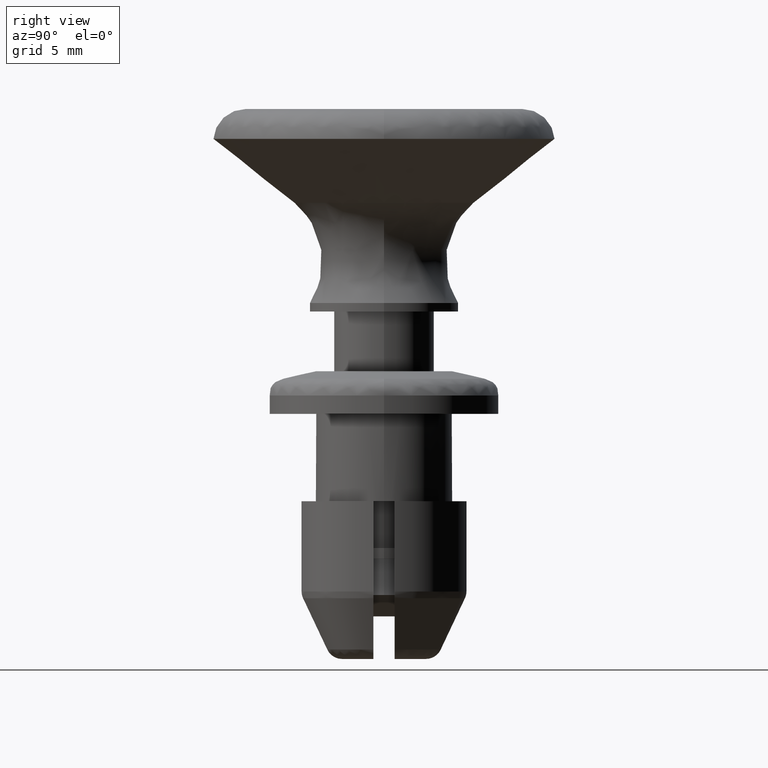
[diagram: clean part render]
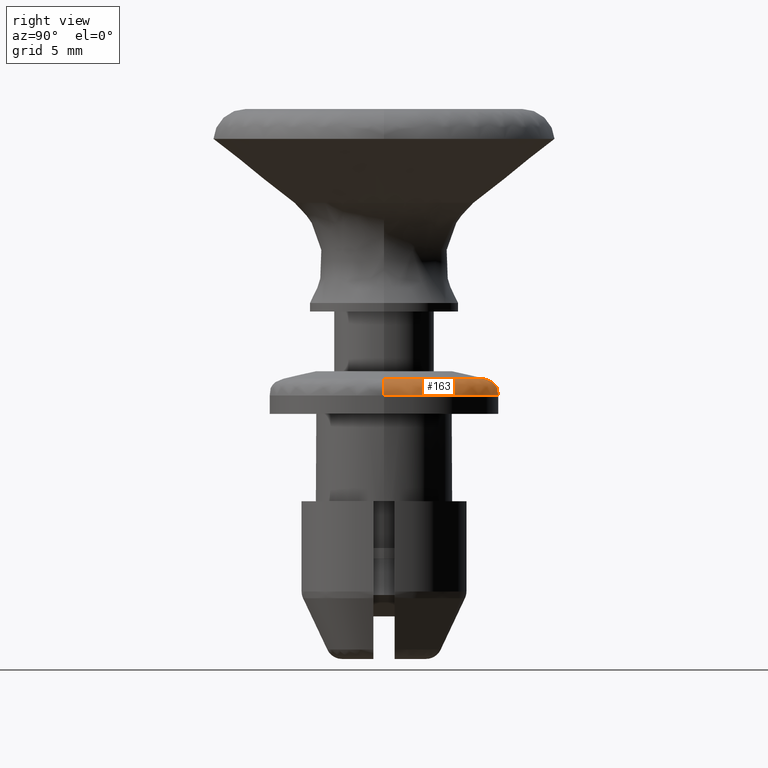
[diagram: same view with one face highlighted and labeled with its STEP entity id]
A machine part, right view. The second image highlights one B-rep face of the part: STEP entity #163.
In plain terms, the highlighted face is a freeform B-spline surface patch.
Its self-contained STEP definition (entity closure, byte-faithful):
#163=ADVANCED_FACE('',(#708),#707,.T.);
#707=( BOUNDED_SURFACE() B_SPLINE_SURFACE( 2,2,((#1401,#1402,#1403,#1404,#1405),(#1406,#1407,#1408,#1409,#1410),(#1411,#1412,#1413,#1414,#1415),(#1416,#1417,#1418,#1419,#1420),(#1421,#1422,#1423,#1424,#1425)), .UNSPECIFIED.,.F.,.F.,.F.) B_SPLINE_SURFACE_WITH_KNOTS((3,2,3),(3,2,3),(0.00000000000E+00,5.00000000000E-01,1.00000000000E+00),(0.00000000000E+00,5.00000000000E-01,1.00000000000E+00), .UNSPECIFIED. ) GEOMETRIC_REPRESENTATION_ITEM() RATIONAL_B_SPLINE_SURFACE(((1.00000000000E+00,7.07106781187E-01,1.00000000000E+00,7.07106781187E-01,1.00000000000E+00),(7.07106781187E-01,5.00000000000E-01,7.07106781187E-01,5.00000000000E-01,7.07106781187E-01),(1.00000000000E+00,7.07106781187E-01,1.00000000000E+00,7.07106781187E-01,1.00000000000E+00),(7.07106781187E-01,5.00000000000E-01,7.07106781187E-01,5.00000000000E-01,7.07106781187E-01),(1.00000000000E+00,7.07106781187E-01,1.00000000000E+00,7.07106781187E-01,1.00000000000E+00))) REPRESENTATION_ITEM('') SURFACE() );
#708=FACE_OUTER_BOUND('',#1426,.T.);
#1401=CARTESIAN_POINT('',(-3.80000000000E+00,-1.53692234909E-20,-1.13900000000E+00));
#1402=CARTESIAN_POINT('',(-3.80000000000E+00,-1.53692234909E-20,-3.39000000000E-01));
#1403=CARTESIAN_POINT('',(-4.60000000000E+00,-1.86048494889E-20,-3.39000000000E-01));
#1404=CARTESIAN_POINT('',(-5.40000000000E+00,-2.18404754870E-20,-3.39000000000E-01));
#1405=CARTESIAN_POINT('',(-5.40000000000E+00,-2.18404754870E-20,-1.13900000000E+00));
#1406=CARTESIAN_POINT('',(-3.80000000000E+00,3.80000000000E+00,-1.13900000000E+00));
#1407=CARTESIAN_POINT('',(-3.80000000000E+00,3.80000000000E+00,-3.39000000000E-01));
#1408=CARTESIAN_POINT('',(-4.60000000000E+00,4.60000000000E+00,-3.39000000000E-01));
#1409=CARTESIAN_POINT('',(-5.40000000000E+00,5.40000000000E+00,-3.39000000000E-01));
#1410=CARTESIAN_POINT('',(-5.40000000000E+00,5.40000000000E+00,-1.13900000000E+00));
#1411=CARTESIAN_POINT('',(-2.32698261061E-16,3.80000000000E+00,-1.13900000000E+00));
#1412=CARTESIAN_POINT('',(-2.32698261061E-16,3.80000000000E+00,-3.39000000000E-01));
#1413=CARTESIAN_POINT('',(-2.81687368653E-16,4.60000000000E+00,-3.39000000000E-01));
#1414=CARTESIAN_POINT('',(-3.30676476245E-16,5.40000000000E+00,-3.39000000000E-01));
#1415=CARTESIAN_POINT('',(-3.30676476245E-16,5.40000000000E+00,-1.13900000000E+00));
#1416=CARTESIAN_POINT('',(3.80000000000E+00,3.80000000000E+00,-1.13900000000E+00));
#1417=CARTESIAN_POINT('',(3.80000000000E+00,3.80000000000E+00,-3.39000000000E-01));
#1418=CARTESIAN_POINT('',(4.60000000000E+00,4.60000000000E+00,-3.39000000000E-01));
#1419=CARTESIAN_POINT('',(5.40000000000E+00,5.40000000000E+00,-3.39000000000E-01));
#1420=CARTESIAN_POINT('',(5.40000000000E+00,5.40000000000E+00,-1.13900000000E+00));
#1421=CARTESIAN_POINT('',(3.80000000000E+00,4.65381152899E-16,-1.13900000000E+00));
#1422=CARTESIAN_POINT('',(3.80000000000E+00,4.65381152899E-16,-3.39000000000E-01));
#1423=CARTESIAN_POINT('',(4.60000000000E+00,5.63356132457E-16,-3.39000000000E-01));
#1424=CARTESIAN_POINT('',(5.40000000000E+00,6.61331112015E-16,-3.39000000000E-01));
#1425=CARTESIAN_POINT('',(5.40000000000E+00,6.61331112015E-16,-1.13900000000E+00));
#1426=EDGE_LOOP('',(#1962,#1963,#1964,#1965));
#1962=ORIENTED_EDGE('',*,*,#2243,.T.);
#1963=ORIENTED_EDGE('',*,*,#2245,.T.);
#1964=ORIENTED_EDGE('',*,*,#2247,.F.);
#1965=ORIENTED_EDGE('',*,*,#2246,.F.);
#2243=EDGE_CURVE('',#3225,#3224,#3244,.T.);
#2245=EDGE_CURVE('',#3224,#3250,#3258,.T.);
#2246=EDGE_CURVE('',#3225,#3251,#3264,.T.);
#2247=EDGE_CURVE('',#3251,#3250,#3270,.T.);
#3224=VERTEX_POINT('',#4269);
#3225=VERTEX_POINT('',#4270);
#3244=CIRCLE('',#4282,4.76500400604E+00);
#3250=VERTEX_POINT('',#4283);
#3251=VERTEX_POINT('',#4284);
#3258=(BOUNDED_CURVE() B_SPLINE_CURVE(2,(#4289,#4290,#4291),.UNSPECIFIED.,.F.,.F.) B_SPLINE_CURVE_WITH_KNOTS((3,3),(5.70663352808E-01,1.00000000000E+00),.UNSPECIFIED.) CURVE() GEOMETRIC_REPRESENTATION_ITEM() RATIONAL_B_SPLINE_CURVE((9.28912784348E-01,7.48500414898E-01,1.00000000000E+00)) REPRESENTATION_ITEM('') );
#3264=(BOUNDED_CURVE() B_SPLINE_CURVE(2,(#4292,#4293,#4294),.UNSPECIFIED.,.F.,.F.) B_SPLINE_CURVE_WITH_KNOTS((3,3),(5.70663335655E-01,1.00000000000E+00),.UNSPECIFIED.) CURVE() GEOMETRIC_REPRESENTATION_ITEM() RATIONAL_B_SPLINE_CURVE((6.96684599073E-01,5.61375303638E-01,7.50000000000E-01)) REPRESENTATION_ITEM('') );
#3270=CIRCLE('',#4298,5.40000000000E+00);
#4269=CARTESIAN_POINT('',(4.76500400604E+00,0.00000000000E+00,-3.56201380946E-01));
#4270=CARTESIAN_POINT('',(-4.76500400604E+00,0.00000000000E+00,-3.56201380946E-01));
#4279=CARTESIAN_POINT('',(0.00000000000E+00,0.00000000000E+00,-3.56201380946E-01));
#4280=DIRECTION('',(-0.00000000000E+00,0.00000000000E+00,-1.00000000000E+00));
#4281=DIRECTION('',(-1.00000000000E+00,-1.22460635382E-16,0.00000000000E+00));
#4282=AXIS2_PLACEMENT_3D('',#4279,#4280,#4281);
#4283=CARTESIAN_POINT('',(5.40000000000E+00,2.96059473233E-16,-1.13900000000E+00));
#4284=CARTESIAN_POINT('',(-5.40000000000E+00,0.00000000000E+00,-1.13900000000E+00));
#4289=CARTESIAN_POINT('',(4.76500404437E+00,-5.83525422873E-16,-3.56201389027E-01));
#4290=CARTESIAN_POINT('',(5.40000000000E+00,-6.61287431064E-16,-4.90050503435E-01));
#4291=CARTESIAN_POINT('',(5.40000000000E+00,-6.61287431064E-16,-1.13900000000E+00));
#4292=CARTESIAN_POINT('',(-4.76500400349E+00,7.87241589314E-16,-3.56201380410E-01));
#4293=CARTESIAN_POINT('',(-5.40000000000E+00,9.04992206953E-16,-4.90050468798E-01));
#4294=CARTESIAN_POINT('',(-5.40000000000E+00,2.96059473233E-16,-1.13900000000E+00));
#4295=CARTESIAN_POINT('',(0.00000000000E+00,0.00000000000E+00,-1.13900000000E+00));
#4296=DIRECTION('',(-0.00000000000E+00,0.00000000000E+00,-1.00000000000E+00));
#4297=DIRECTION('',(-1.00000000000E+00,-1.22460635382E-16,0.00000000000E+00));
#4298=AXIS2_PLACEMENT_3D('',#4295,#4296,#4297);